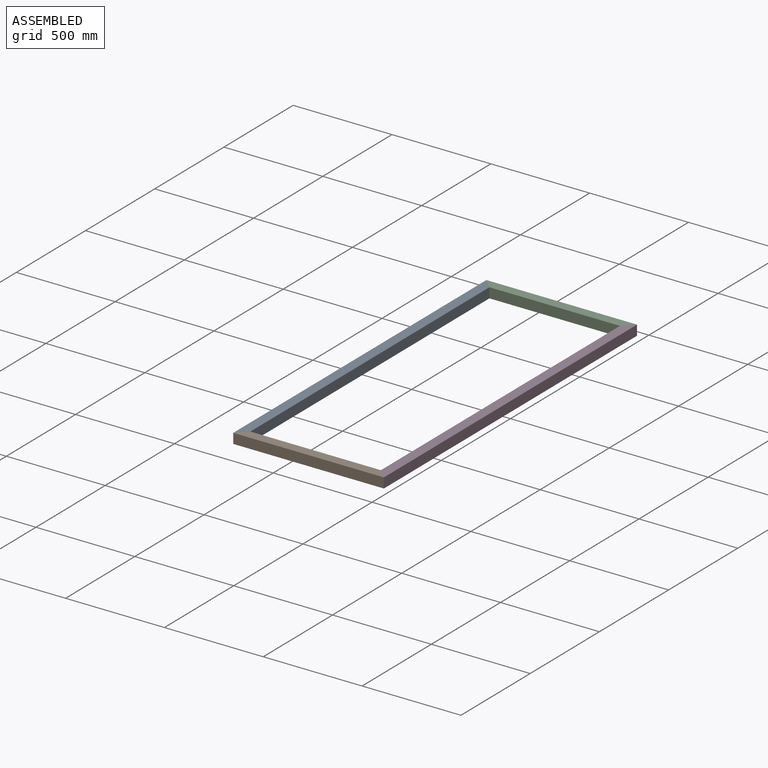
[diagram: assembled view]
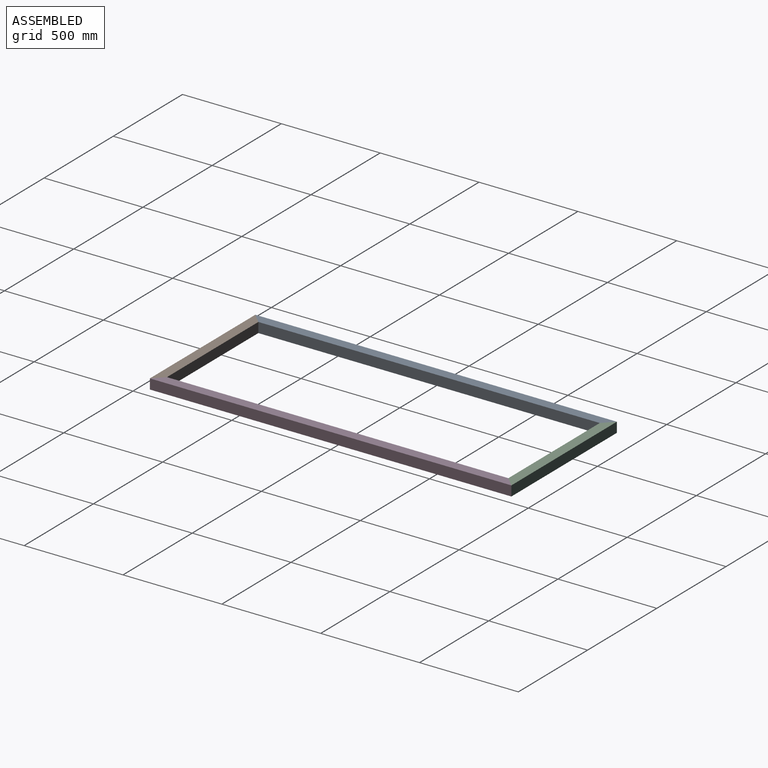
[diagram: assembled view, second angle]
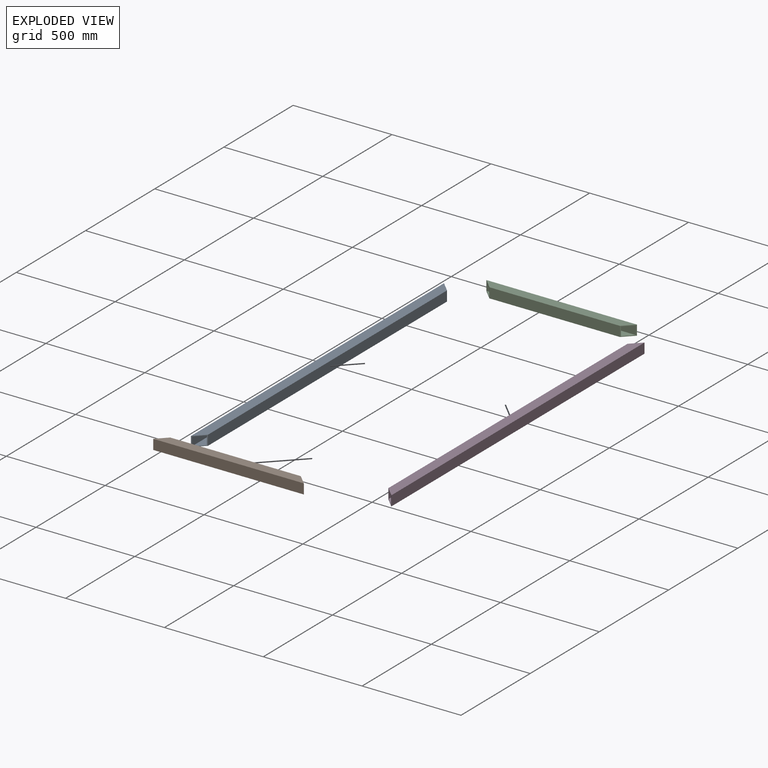
[diagram: exploded view]
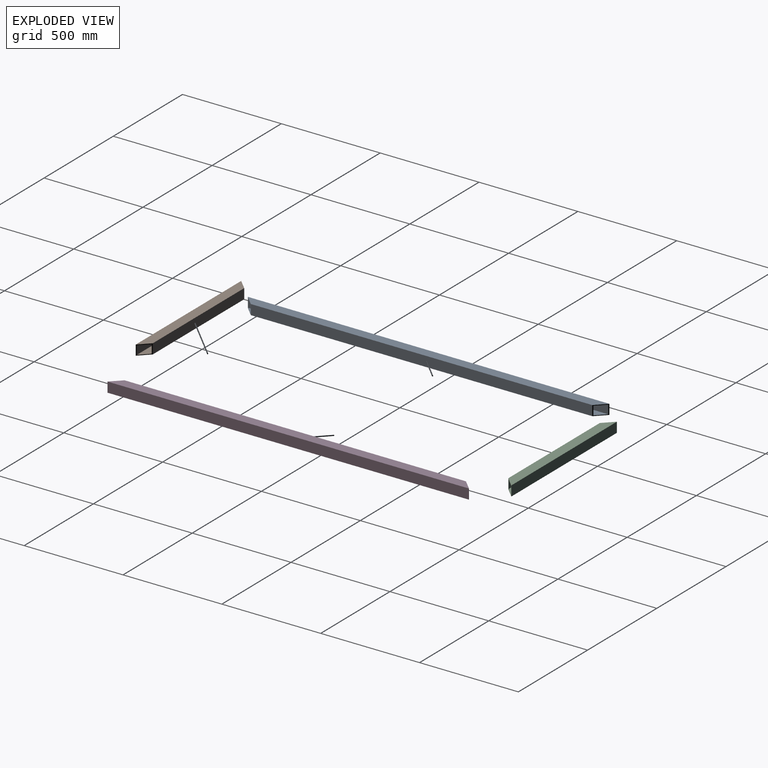
[diagram: exploded view, second angle]
ASSEMBLY  parts=4 mates=3
PART A: 10 faces, bbox 50.8x1828.8x50.8 mm
  f0: plane 1822.45x44.45mm, normal (1,0,0), area 79032.1mm2, adj f1,f3,f4,f5
  f1: plane 1822.45x44.45mm, normal (0,0,1), area 81007.9mm2, adj f0,f2,f4,f5
  f2: plane 1822.45x44.45mm, normal (-1,0,0), area 79032.1mm2, adj f1,f3,f4,f5
  f3: plane 1733.55x44.45mm, normal (0,0,-1), area 77056.3mm2, adj f0,f2,f4,f5
  f4: plane 50.8x50.8mm, normal (0,0.71,0.71), area 855.4mm2, adj f0,f1,f2,f3,f6,f7,f8,f9
  f5: plane 50.8x50.8mm, normal (0,-0.71,0.71), area 855.4mm2, adj f0,f1,f2,f3,f6,f7,f8,f9
  f6: plane 1727.2x50.8mm, normal (0,0,1), area 87741.8mm2, adj f4,f5,f7,f8
  f7: plane 1828.8x50.8mm, normal (1,0,0), area 90322.4mm2, adj f4,f5,f6,f9
  f8: plane 1828.8x50.8mm, normal (-1,0,0), area 90322.4mm2, adj f4,f5,f6,f9
  f9: plane 1828.8x50.8mm, normal (0,0,-1), area 92903mm2, adj f4,f5,f7,f8
PART B: 10 faces, bbox 50.8x762x50.8 mm
  f0: plane 755.65x44.45mm, normal (1,0,0), area 31612.8mm2, adj f1,f3,f4,f5
  f1: plane 755.65x44.45mm, normal (0,0,1), area 33588.6mm2, adj f0,f2,f4,f5
  f2: plane 755.65x44.45mm, normal (-1,0,0), area 31612.8mm2, adj f1,f3,f4,f5
  f3: plane 666.75x44.45mm, normal (0,0,-1), area 29637mm2, adj f0,f2,f4,f5
  f4: plane 50.8x50.8mm, normal (0,0.71,0.71), area 855.4mm2, adj f0,f1,f2,f3,f6,f7,f8,f9
  f5: plane 50.8x50.8mm, normal (0,-0.71,0.71), area 855.4mm2, adj f0,f1,f2,f3,f6,f7,f8,f9
  f6: plane 660.4x50.8mm, normal (0,0,1), area 33548.3mm2, adj f4,f5,f7,f8
  f7: plane 762x50.8mm, normal (1,0,0), area 36129mm2, adj f4,f5,f6,f9
  f8: plane 762x50.8mm, normal (-1,0,0), area 36129mm2, adj f4,f5,f6,f9
  f9: plane 762x50.8mm, normal (0,0,-1), area 38709.6mm2, adj f4,f5,f7,f8
PART C: same geometry as B
PART D: same geometry as A
PLACE A rot(axis=(0,1,0),90deg) t=(-736.6,0,25.4)mm
PLACE B rot(axis=(-0.58,-0.58,-0.58),120deg) t=(-381,-889,25.4)mm
PLACE C rot(axis=(0.58,0.58,-0.58),120deg) t=(-381,889,25.4)mm
PLACE D rot(axis=(0,-1,0),90deg) t=(-25.4,0,25.4)mm
MATE fastened C.f5 <-> A.f4  axis (-0.71,-0.71,0) through (-762,914.4,25.4)mm
MATE fastened D.f4 <-> C.f4  axis (-0.71,0.71,0) through (0,914.4,25.4)mm
MATE fastened D.f5 <-> B.f4  axis (-0.71,-0.71,0) through (0,-914.4,25.4)mm
